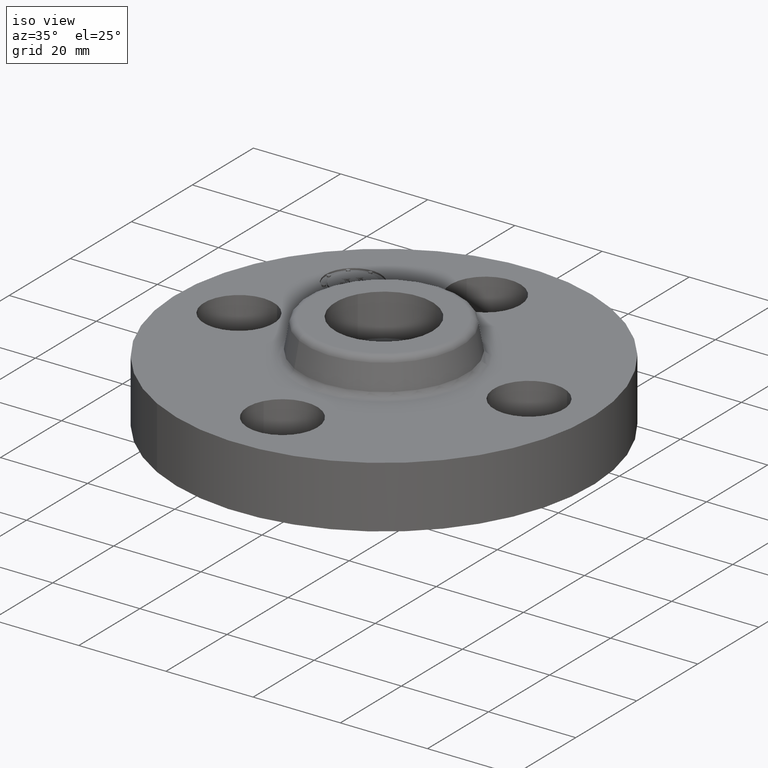
[diagram: clean part render]
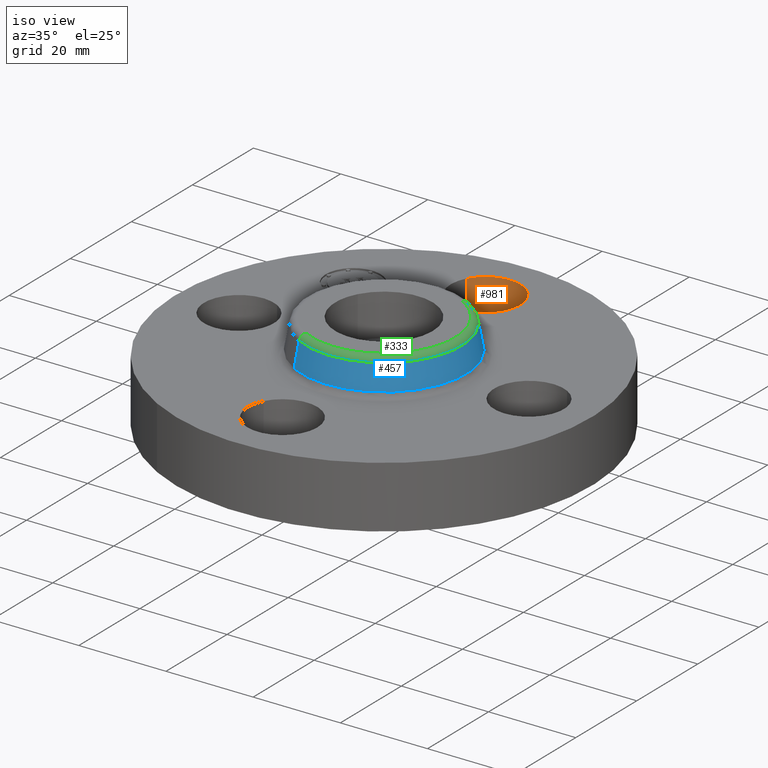
[diagram: same view with three faces highlighted in distinct colors, each labeled with its STEP entity id]
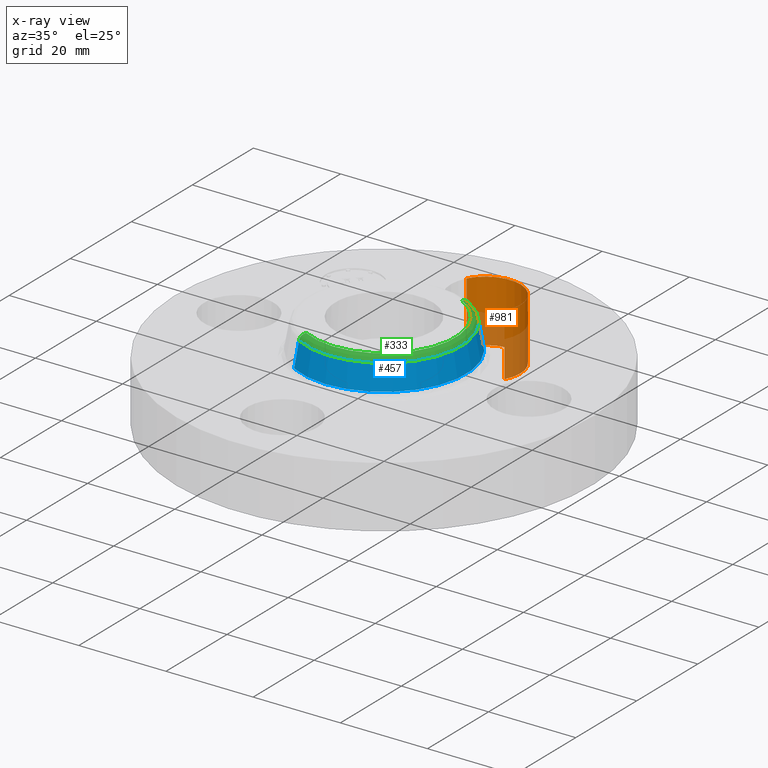
[diagram: x-ray of the same camera — body ghosted, the three highlighted faces saturated]
A machine part, iso view with three faces highlighted in distinct colors.
The next image is the same camera in x-ray (body ghosted, the three faces saturated) — at least one of them is partly hidden behind the body in this view.
Their STEP definitions:

[orange] entity #981 — the highlighted cylindrical surface (partial cylindrical patch) has radius 8.001 mm, axis along (0, -0, -1).
#715=AXIS2_PLACEMENT_3D('Circle Axis2P3D',#713,#714,$) ;
#942=AXIS2_PLACEMENT_3D('Cylinder Axis2P3D',#939,#940,#941) ;
#713=CARTESIAN_POINT('Axis2P3D Location',(1.74838271595E-017,1.31000000002,0.560000000002)) ;
#717=CARTESIAN_POINT('Vertex',(-0.276438506996,1.46101904467,0.559999999987)) ;
#719=CARTESIAN_POINT('Vertex',(0.276438506965,1.15898095534,0.560000000002)) ;
#939=CARTESIAN_POINT('Axis2P3D Location',(0.,1.31000000001,0.556062992128)) ;
#944=CARTESIAN_POINT('Line Origine',(-0.276438506996,1.46101904467,0.280000000001)) ;
#948=CARTESIAN_POINT('Vertex',(-0.276438506965,1.46101904467,0.)) ;
#952=CARTESIAN_POINT('Control Point',(-0.276438506996,1.46101904467,0.)) ;
#953=CARTESIAN_POINT('Control Point',(-0.252716490933,1.50444190381,4.23440809975E-013)) ;
#954=CARTESIAN_POINT('Control Point',(-0.220468416416,1.54320695598,8.4688161995E-013)) ;
#955=CARTESIAN_POINT('Control Point',(-0.180906878601,1.57507453335,1.27033991375E-012)) ;
#956=CARTESIAN_POINT('Control Point',(-0.0914202191715,1.62158053409,2.1172215337E-012)) ;
#957=CARTESIAN_POINT('Control Point',(0.00900750770346,1.63079693228,2.96410315365E-012)) ;
#958=CARTESIAN_POINT('Control Point',(0.059515519424,1.62535648068,3.38756144745E-012)) ;
#959=CARTESIAN_POINT('Control Point',(0.155676851623,1.59496456546,4.2344430674E-012)) ;
#960=CARTESIAN_POINT('Control Point',(0.233206955974,1.53046841643,5.08132468735E-012)) ;
#961=CARTESIAN_POINT('Control Point',(0.265074533342,1.49090687861,5.50478298115E-012)) ;
#962=CARTESIAN_POINT('Control Point',(0.311580534084,1.40142021918,6.3516646011E-012)) ;
#963=CARTESIAN_POINT('Control Point',(0.320796932274,1.30099249231,7.19854622105E-012)) ;
#964=CARTESIAN_POINT('Control Point',(0.315356480668,1.25048448059,7.62200451485E-012)) ;
#965=CARTESIAN_POINT('Control Point',(0.300160523059,1.20240381449,8.04544532483E-012)) ;
#966=CARTESIAN_POINT('Control Point',(0.276438506996,1.15898095535,8.4688861348E-012)) ;
#967=CARTESIAN_POINT('Vertex',(0.276438506965,1.15898095532,0.)) ;
#970=CARTESIAN_POINT('Line Origine',(0.276438506996,1.15898095535,0.280000000001)) ;
#714=DIRECTION('Axis2P3D Direction',(0.,0.,-0.0393700787402)) ;
#940=DIRECTION('Axis2P3D Direction',(0.,-0.,-0.0393700787402)) ;
#941=DIRECTION('Axis2P3D XDirection',(-0.0345504945626,0.0188750212049,0.)) ;
#945=DIRECTION('Vector Direction',(0.,0.,-0.0393700787402)) ;
#971=DIRECTION('Vector Direction',(0.,0.,-0.0393700787402)) ;
#946=VECTOR('Line Direction',#945,0.0393700787402) ;
#972=VECTOR('Line Direction',#971,0.0393700787402) ;
#976=ORIENTED_EDGE('',*,*,#950,.F.) ;
#977=ORIENTED_EDGE('',*,*,#969,.T.) ;
#978=ORIENTED_EDGE('',*,*,#974,.T.) ;
#979=ORIENTED_EDGE('',*,*,#721,.F.) ;
#981=ADVANCED_FACE('PartBody',(#980),#943,.F.) ;
#951=B_SPLINE_CURVE_WITH_KNOTS('',5,(#952,#953,#954,#955,#956,#957,#958,#959,#960,#961,#962,#963,#964,#965,#966),.UNSPECIFIED.,.F.,.U.,(6,3,3,3,6),(-12.5679414107,-6.28397070536,8.881784197E-016,6.28397070536,12.5679414107),.UNSPECIFIED.) ;
#716=CIRCLE('generated circle',#715,0.314999999981) ;
#943=CYLINDRICAL_SURFACE('generated cylinder',#942,0.315000000001) ;
#721=EDGE_CURVE('',#718,#720,#716,.T.) ;
#950=EDGE_CURVE('',#949,#718,#947,.F.) ;
#969=EDGE_CURVE('',#949,#968,#951,.T.) ;
#974=EDGE_CURVE('',#968,#720,#973,.F.) ;
#975=EDGE_LOOP('',(#976,#977,#978,#979)) ;
#980=FACE_OUTER_BOUND('',#975,.T.) ;
#947=LINE('Line',#944,#946) ;
#973=LINE('Line',#970,#972) ;
#718=VERTEX_POINT('',#717) ;
#720=VERTEX_POINT('',#719) ;
#949=VERTEX_POINT('',#948) ;
#968=VERTEX_POINT('',#967) ;

[blue] entity #457 — the highlighted conical surface has half-angle 10 deg.
#310=AXIS2_PLACEMENT_3D('Circle Axis2P3D',#308,#309,$) ;
#430=AXIS2_PLACEMENT_3D('Cone Axis2P3D',#427,#428,#429) ;
#434=AXIS2_PLACEMENT_3D('Circle Axis2P3D',#432,#433,$) ;
#308=CARTESIAN_POINT('Axis2P3D Location',(0.,0.,0.830418890663)) ;
#312=CARTESIAN_POINT('Vertex',(0.336709115179,0.616341901123,0.830418890663)) ;
#314=CARTESIAN_POINT('Vertex',(-0.336709115179,-0.616341901124,0.830418890663)) ;
#427=CARTESIAN_POINT('Axis2P3D Location',(0.,0.,0.830418890663)) ;
#432=CARTESIAN_POINT('Axis2P3D Location',(0.,0.,0.609581109342)) ;
#436=CARTESIAN_POINT('Vertex',(0.355377782268,0.65051466701,0.609581109342)) ;
#438=CARTESIAN_POINT('Vertex',(-0.355377782268,-0.65051466701,0.609581109342)) ;
#441=CARTESIAN_POINT('Line Origine',(0.346043448723,0.633428284066,0.720000000002)) ;
#446=CARTESIAN_POINT('Line Origine',(-0.346043448723,-0.633428284066,0.720000000002)) ;
#309=DIRECTION('Axis2P3D Direction',(-0.,0.,-0.0393700787402)) ;
#428=DIRECTION('Axis2P3D Direction',(0.,0.,-0.0393700787402)) ;
#429=DIRECTION('Axis2P3D XDirection',(0.0188750212049,0.0345504945626,0.)) ;
#433=DIRECTION('Axis2P3D Direction',(-0.,0.,-0.0393700787402)) ;
#442=DIRECTION('Vector Direction',(0.00327761303565,0.00599963041827,-0.03877195878)) ;
#447=DIRECTION('Vector Direction',(-0.00327761303565,-0.00599963041827,-0.03877195878)) ;
#443=VECTOR('Line Direction',#442,0.0393700787402) ;
#448=VECTOR('Line Direction',#447,0.0393700787402) ;
#452=ORIENTED_EDGE('',*,*,#440,.F.) ;
#453=ORIENTED_EDGE('',*,*,#445,.T.) ;
#454=ORIENTED_EDGE('',*,*,#316,.T.) ;
#455=ORIENTED_EDGE('',*,*,#450,.F.) ;
#457=ADVANCED_FACE('PartBody',(#456),#431,.T.) ;
#311=CIRCLE('generated circle',#310,0.702317853486) ;
#435=CIRCLE('generated circle',#434,0.741257512693) ;
#431=CONICAL_SURFACE('Cone',#430,0.702317853486,0.174532925199) ;
#316=EDGE_CURVE('',#313,#315,#311,.T.) ;
#440=EDGE_CURVE('',#437,#439,#435,.T.) ;
#445=EDGE_CURVE('',#437,#313,#444,.F.) ;
#450=EDGE_CURVE('',#439,#315,#449,.F.) ;
#451=EDGE_LOOP('',(#452,#453,#454,#455)) ;
#456=FACE_OUTER_BOUND('',#451,.T.) ;
#444=LINE('Line',#441,#443) ;
#449=LINE('Line',#446,#448) ;
#313=VERTEX_POINT('',#312) ;
#315=VERTEX_POINT('',#314) ;
#437=VERTEX_POINT('',#436) ;
#439=VERTEX_POINT('',#438) ;

[green] entity #333 — the highlighted toroidal blend (fillet) surface has major radius 16.338 mm and minor (blend) radius 1.524 mm.
#240=AXIS2_PLACEMENT_3D('Circle Axis2P3D',#238,#239,$) ;
#306=AXIS2_PLACEMENT_3D('Torus Axis2P3D',#303,#304,#305) ;
#310=AXIS2_PLACEMENT_3D('Circle Axis2P3D',#308,#309,$) ;
#319=AXIS2_PLACEMENT_3D('Circle Axis2P3D',#317,#318,$) ;
#324=AXIS2_PLACEMENT_3D('Circle Axis2P3D',#322,#323,$) ;
#238=CARTESIAN_POINT('Axis2P3D Location',(4.36653687836E-011,-2.8071753146E-011,0.880000000004)) ;
#242=CARTESIAN_POINT('Vertex',(0.308380595934,0.564486894472,0.880000000003)) ;
#244=CARTESIAN_POINT('Vertex',(-0.308380595934,-0.564486894472,0.880000000003)) ;
#303=CARTESIAN_POINT('Axis2P3D Location',(0.,0.,0.820000000003)) ;
#308=CARTESIAN_POINT('Axis2P3D Location',(0.,0.,0.830418890663)) ;
#312=CARTESIAN_POINT('Vertex',(0.336709115179,0.616341901123,0.830418890663)) ;
#314=CARTESIAN_POINT('Vertex',(-0.336709115179,-0.616341901124,0.830418890663)) ;
#317=CARTESIAN_POINT('Axis2P3D Location',(0.308380595934,0.564486894472,0.820000000003)) ;
#322=CARTESIAN_POINT('Axis2P3D Location',(-0.308380595934,-0.564486894472,0.820000000003)) ;
#239=DIRECTION('Axis2P3D Direction',(0.,0.,-0.0393700787402)) ;
#304=DIRECTION('Axis2P3D Direction',(0.,0.,-0.0393700787402)) ;
#305=DIRECTION('Axis2P3D XDirection',(0.0188750212049,0.0345504945626,0.)) ;
#309=DIRECTION('Axis2P3D Direction',(-0.,0.,-0.0393700787402)) ;
#318=DIRECTION('Axis2P3D Direction',(-0.0345504945626,0.0188750212049,0.)) ;
#323=DIRECTION('Axis2P3D Direction',(0.0345504945626,-0.0188750212049,0.)) ;
#328=ORIENTED_EDGE('',*,*,#316,.F.) ;
#329=ORIENTED_EDGE('',*,*,#321,.T.) ;
#330=ORIENTED_EDGE('',*,*,#246,.T.) ;
#331=ORIENTED_EDGE('',*,*,#326,.F.) ;
#333=ADVANCED_FACE('PartBody',(#332),#307,.T.) ;
#241=CIRCLE('generated circle',#240,0.643229388281) ;
#311=CIRCLE('generated circle',#310,0.702317853486) ;
#320=CIRCLE('generated circle',#319,0.0600000000002) ;
#325=CIRCLE('generated circle',#324,0.0600000000002) ;
#307=TOROIDAL_SURFACE('homeo Torus',#306,0.643229388305,0.0600000000002) ;
#246=EDGE_CURVE('',#243,#245,#241,.T.) ;
#316=EDGE_CURVE('',#313,#315,#311,.T.) ;
#321=EDGE_CURVE('',#313,#243,#320,.F.) ;
#326=EDGE_CURVE('',#315,#245,#325,.F.) ;
#327=EDGE_LOOP('',(#328,#329,#330,#331)) ;
#332=FACE_OUTER_BOUND('',#327,.T.) ;
#243=VERTEX_POINT('',#242) ;
#245=VERTEX_POINT('',#244) ;
#313=VERTEX_POINT('',#312) ;
#315=VERTEX_POINT('',#314) ;